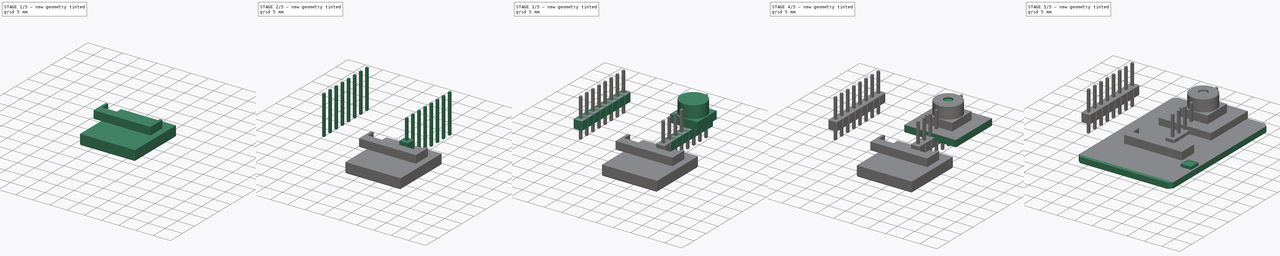
[diagram: build sequence overview — one tinted view per stage of 5, left to right]
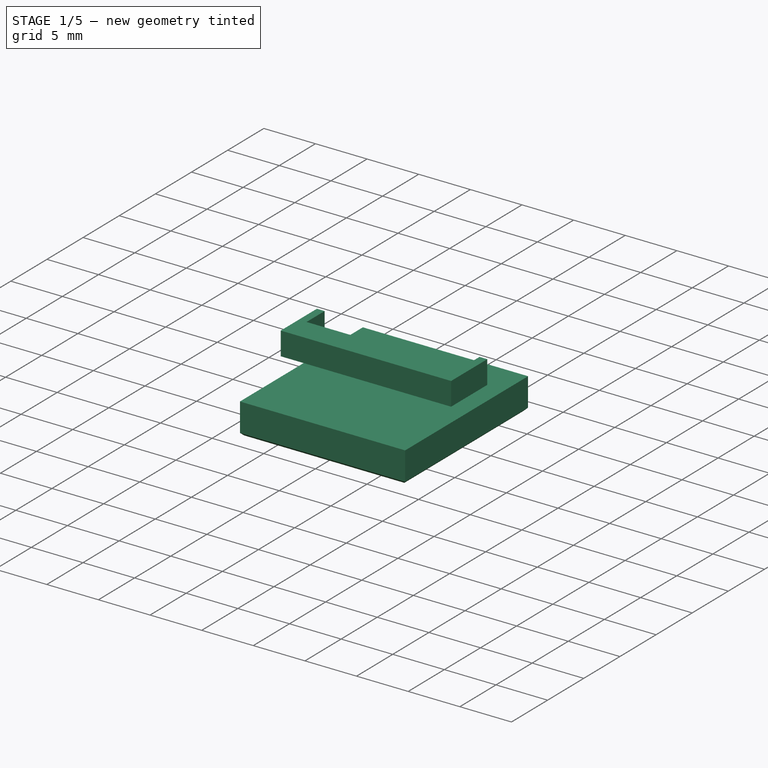
[diagram: stage 1 of 5 — iso view after this stage's code; geometry added in this stage tinted green]
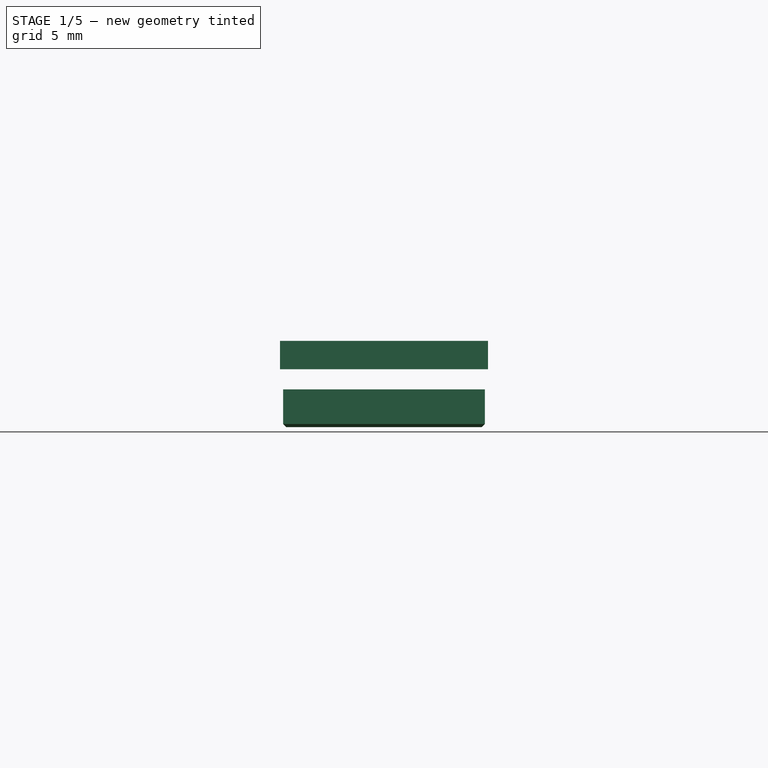
[diagram: stage 1 of 5 — front view after this stage's code; geometry added in this stage tinted green]
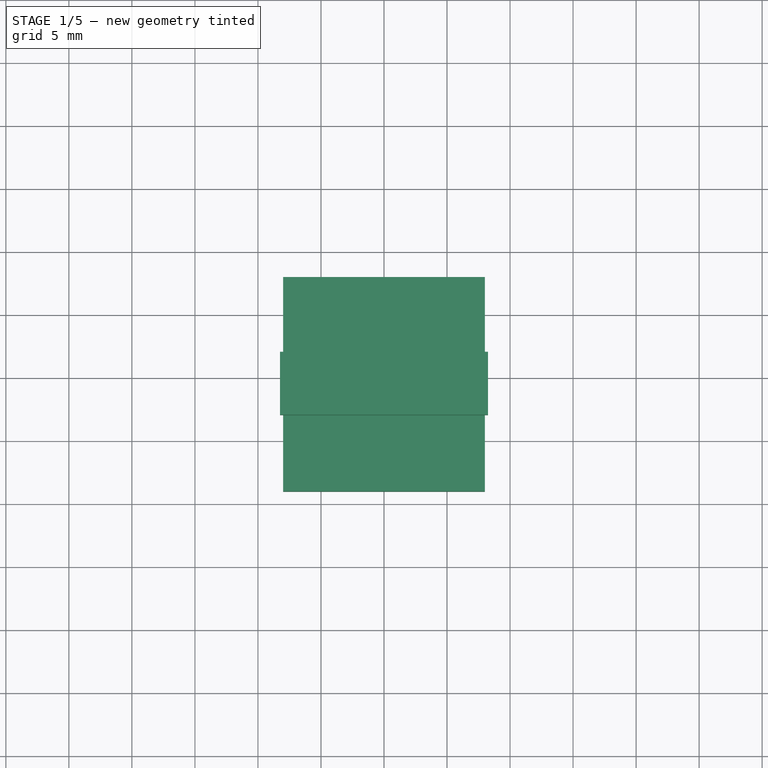
[diagram: stage 1 of 5 — top view after this stage's code; geometry added in this stage tinted green]
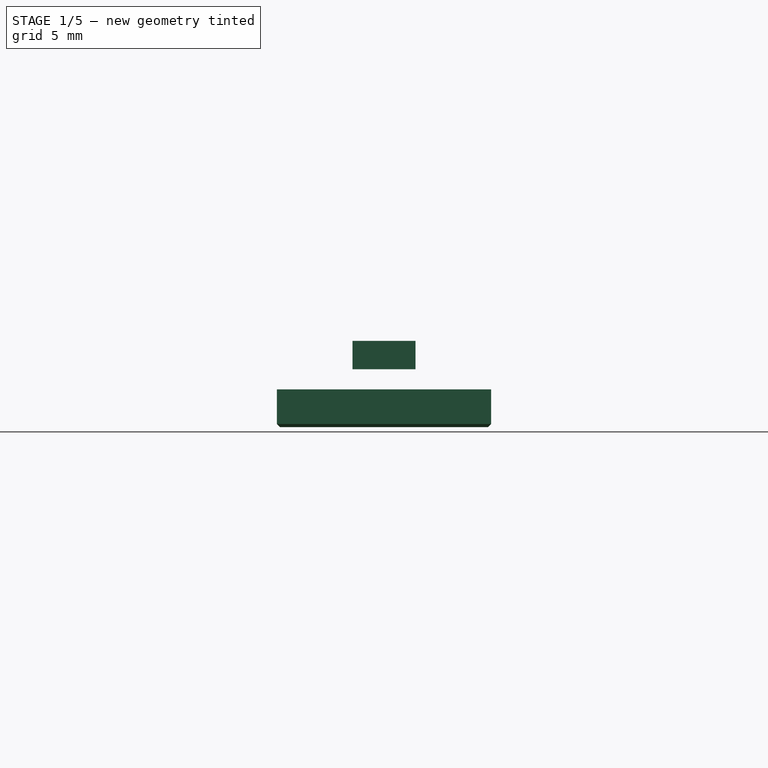
[diagram: stage 1 of 5 — right view after this stage's code; geometry added in this stage tinted green]
FCSTD DOCUMENT  (FreeCAD 0.18R4 (GitTag))
Label: ESP32-CAM
License: CreativeCommons Attribution-NonCommercial
LicenseURL: http://creativecommons.org/licenses/by-nc/4.0/
objects: Sketcher::SketchObject×12, PartDesign::Pad×9, PartDesign::Body×8, PartDesign::Chamfer×6, PartDesign::ShapeBinder×5, PartDesign::Pocket×3, Part::FeaturePython×2, App::Part×2, PartDesign::Thickness×1
note: 58 computed .brp shape members not serialized (recipe doc carries the construction recipe); baked Part::Feature solids carry a one-line shape summary decoded from their .brp

FEATURE [App::Part] Part010  label="Pin Header001"
  Group = -> [Body035,Body034,Array,Array001]
  Origin = -> Origin051
  Placement = pos=(12,15,0) rot=(1,0,0;3.14159rad)
FEATURE [PartDesign::ShapeBinder] CopyChamfer003
  Placement = pos=(0,0,1.6) rot=(0,0,1;0rad)
  TraceSupport = false
FEATURE [Sketcher::SketchObject] Sketch209
  MapMode = 5
  Placement = pos=(0,0,1.6) rot=(0,0,1;0rad)
  Support = -> [CopyChamfer003]
  sketch-geometry (4):
    g0: LineSegment StartX=-8.25 StartY=-3 StartZ=0 EndX=8.25 EndY=-3 EndZ=0
    g1: LineSegment StartX=8.25 StartY=-3 StartZ=0 EndX=8.25 EndY=-8 EndZ=0
    g2: LineSegment StartX=8.25 StartY=-8 StartZ=0 EndX=-8.25 EndY=-8 EndZ=0
    g3: LineSegment StartX=-8.25 StartY=-8 StartZ=0 EndX=-8.25 EndY=-3 EndZ=0
  constraints (11):
    c: Coincident(g0,g1)
    c: Coincident(g1,g2)
    c: Coincident(g2,g3)
    c: Coincident(g3,g0)
    c: Horizontal(g2)
    c: Vertical(g1)
    c: Vertical(g3)
    c: Symmetric(g0,g0,g-2)
    c: DistanceX(g0,g0) = 16.5
    c: DistanceY(g1,g1) = 5
    c: DistanceY(g1,g-1) = 8
FEATURE [PartDesign::Pad] Pad064
  Length = 2.25
  Length2 = 100
  Placement = pos=(0,0,1.6) rot=(0,0,1;0rad)
  Profile = -> Sketch209
  Type = 0
FEATURE [Sketcher::SketchObject] Sketch210
  MapMode = 5
  Placement = pos=(0,0,3.85) rot=(0,0,1;0rad)
  Support = -> [Pad064]
  sketch-geometry (4):
    g0: LineSegment StartX=-7.5 StartY=-3 StartZ=0 EndX=7.5 EndY=-3 EndZ=0
    g1: LineSegment StartX=7.5 StartY=-3 StartZ=0 EndX=7.5 EndY=-5.5 EndZ=0
    g2: LineSegment StartX=7.5 StartY=-5.5 StartZ=0 EndX=-7.5 EndY=-5.5 EndZ=0
    g3: LineSegment StartX=-7.5 StartY=-5.5 StartZ=0 EndX=-7.5 EndY=-3 EndZ=0
  constraints (11):
    c: Coincident(g0,g1)
    c: Coincident(g1,g2)
    c: Coincident(g2,g3)
    c: Coincident(g3,g0)
    c: Horizontal(g2)
    c: Vertical(g1)
    c: Vertical(g3)
    c: Symmetric(g0,g0,g-2)
    c: DistanceY(g0,g-1) = 3
    c: DistanceY(g1,g1) = 2.5
    c: DistanceX(g0,g0) = 15
FEATURE [PartDesign::Pocket] Pocket002
  BaseFeature = -> Pad064
  Length = 5
  Length2 = 100
  Placement = pos=(0,0,1.6) rot=(0,0,1;0rad)
  Profile = -> Sketch210
  Type = 0
FEATURE [PartDesign::Body] Body036  label="ESP32-CAM Cableconnector"
  Group = -> [CopyChamfer003,Sketch209,Pad064,Sketch210,Pocket002]
  Origin = -> Origin053
  Tip = -> Pocket002
FEATURE [PartDesign::ShapeBinder] CopyChamfer004
  TraceSupport = false
FEATURE [Sketcher::SketchObject] Sketch211
  MapMode = 5
  Placement = pos=(0,0,0) rot=(1,0,0;3.14159rad)
  Support = -> [CopyChamfer004]
  sketch-geometry (4):
    g0: LineSegment StartX=-8 StartY=14 StartZ=0 EndX=8 EndY=14 EndZ=0
    g1: LineSegment StartX=8 StartY=14 StartZ=0 EndX=8 EndY=-3 EndZ=0
    g2: LineSegment StartX=8 StartY=-3 StartZ=0 EndX=-8 EndY=-3 EndZ=0
    g3: LineSegment StartX=-8 StartY=-3 StartZ=0 EndX=-8 EndY=14 EndZ=0
  constraints (11):
    c: Coincident(g0,g1)
    c: Coincident(g1,g2)
    c: Coincident(g2,g3)
    c: Coincident(g3,g0)
    c: Horizontal(g2)
    c: Vertical(g1)
    c: Vertical(g3)
    c: Symmetric(g0,g0,g-2)
    c: DistanceX(g0,g0) = 16
    c: DistanceY(g3,g3) = 17
    c: DistanceY(g1,g-1) = 3
FEATURE [PartDesign::Pad] Pad065
  Length = 3
  Length2 = 100
  Profile = -> Sketch211
  Type = 0
FEATURE [PartDesign::Chamfer] Chamfer015
  Base = -> Pad065 [Face6]
  BaseFeature = -> Pad065
  Size = 0.25
FEATURE [PartDesign::Body] Body037  label="ESP32-CAM ESP-Chip"
  Group = -> [CopyChamfer004,Sketch211,Pad065,Chamfer015]
  Origin = -> Origin054
  Tip = -> Chamfer015
FEATURE [App::Part] Part  label="ESP32-CAM"
  Group = -> [Body,Body001,Body002,Body003,Part010,Body036,Body037]
  Origin = -> Origin
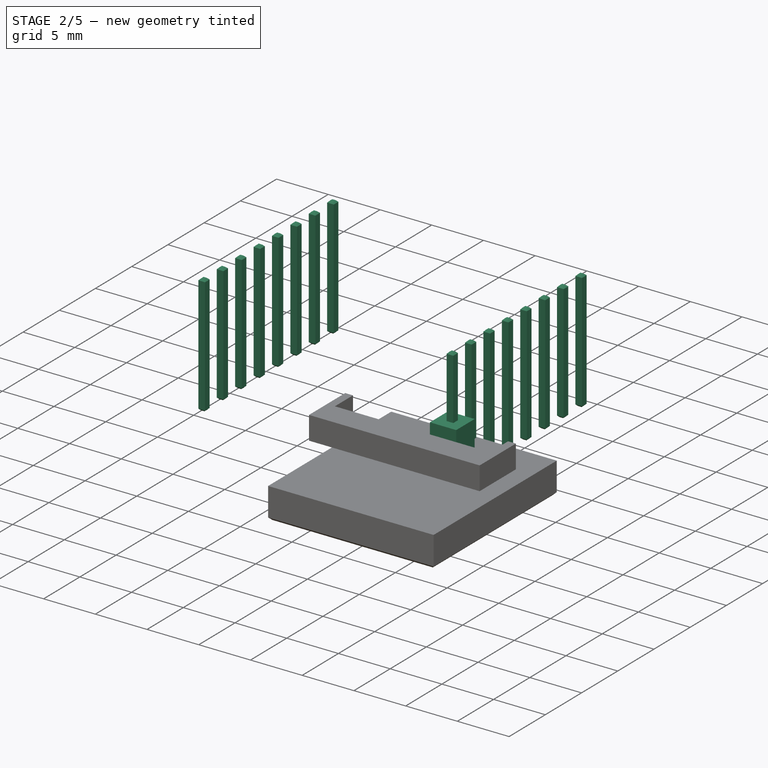
[diagram: stage 2 of 5 — iso view after this stage's code; geometry added in this stage tinted green]
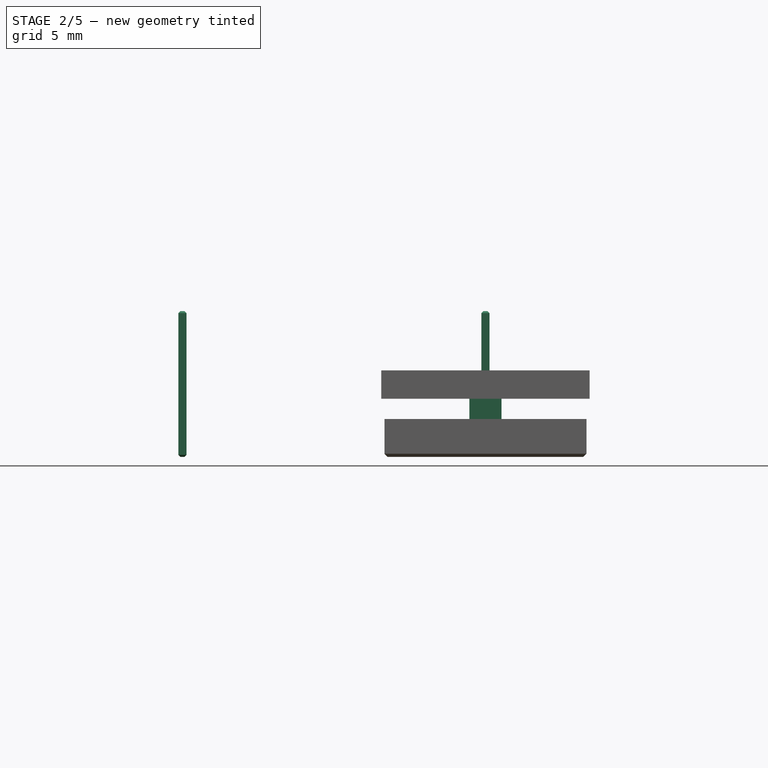
[diagram: stage 2 of 5 — front view after this stage's code; geometry added in this stage tinted green]
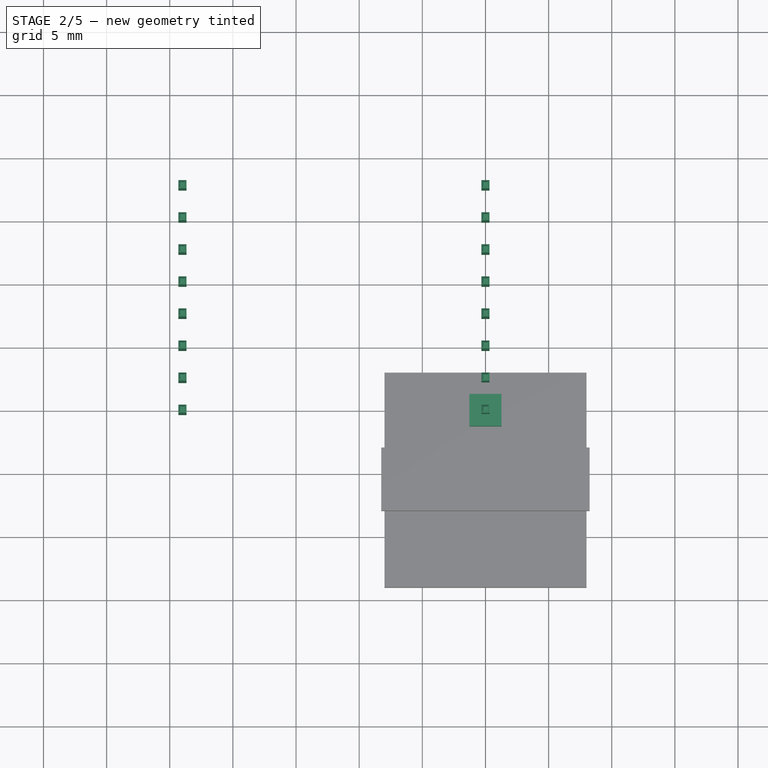
[diagram: stage 2 of 5 — top view after this stage's code; geometry added in this stage tinted green]
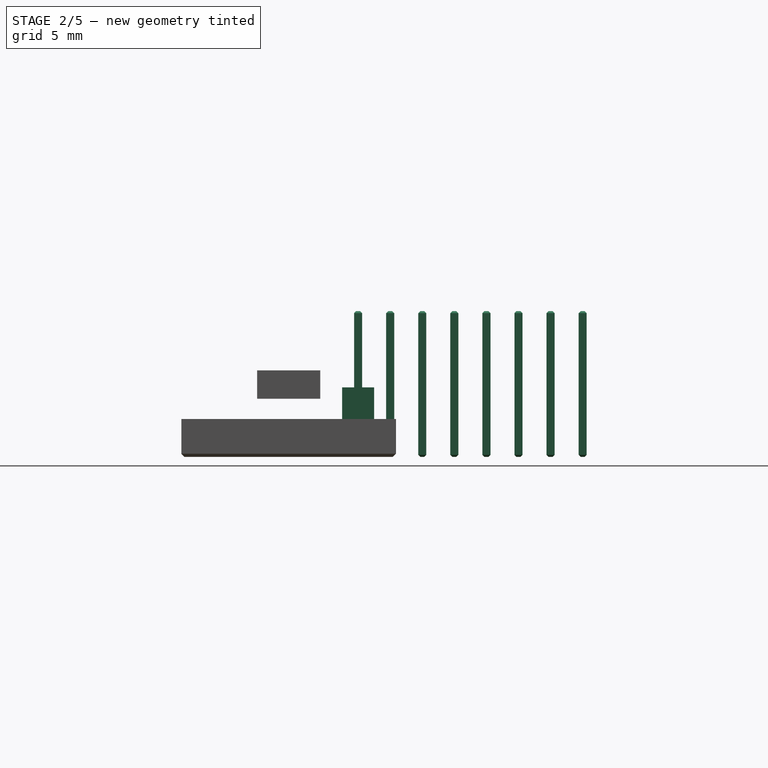
[diagram: stage 2 of 5 — right view after this stage's code; geometry added in this stage tinted green]
FEATURE [PartDesign::Body] Body002  label="ESP32-CAM Camera"
  Group = -> [CopyThickness,Sketch005,Pad003,Sketch006,Pad004,Sketch007,Pocket001,Chamfer001]
  Origin = -> Origin003
  Tip = -> Chamfer001
FEATURE [Sketcher::SketchObject] Sketch207
  MapMode = 5
  Placement = pos=(0,0,0) rot=(1,0,0;1.5708rad)
  Support = -> [XZ_Plane050]
  sketch-geometry (4):
    g0: LineSegment StartX=-0.32 StartY=-3 StartZ=0 EndX=0.32 EndY=-3 EndZ=0
    g1: LineSegment StartX=0.32 StartY=-3 StartZ=0 EndX=0.32 EndY=8.54 EndZ=0
    g2: LineSegment StartX=0.32 StartY=8.54 StartZ=0 EndX=-0.32 EndY=8.54 EndZ=0
    g3: LineSegment StartX=-0.32 StartY=8.54 StartZ=0 EndX=-0.32 EndY=-3 EndZ=0
  constraints (11):
    c: Coincident(g0,g1)
    c: Coincident(g1,g2)
    c: Coincident(g2,g3)
    c: Coincident(g3,g0)
    c: Horizontal(g0)
    c: Vertical(g1)
    c: Vertical(g3)
    c: DistanceY(g-1,g1) = 8.54
    c: DistanceY(g0,g-1) = 3
    c: Symmetric(g2,g1,g-2)
    c: DistanceX(g2,g2) = 0.64
FEATURE [PartDesign::Pad] Pad062
  Length = 0.32
  Length2 = 0.32
  Placement = pos=(0,0,0) rot=(1,0,0;1.5708rad)
  Profile = -> Sketch207
  Type = 4
FEATURE [Sketcher::SketchObject] Sketch208
  MapMode = 5
  Support = -> [XY_Plane052]
  sketch-geometry (4):
    g0: LineSegment StartX=-1.27 StartY=-1.27 StartZ=0 EndX=1.27 EndY=-1.27 EndZ=0
    g1: LineSegment StartX=1.27 StartY=-1.27 StartZ=0 EndX=1.27 EndY=1.27 EndZ=0
    g2: LineSegment StartX=1.27 StartY=1.27 StartZ=0 EndX=-1.27 EndY=1.27 EndZ=0
    g3: LineSegment StartX=-1.27 StartY=1.27 StartZ=0 EndX=-1.27 EndY=-1.27 EndZ=0
  constraints (10):
    c: Coincident(g0,g1)
    c: Coincident(g1,g2)
    c: Coincident(g2,g3)
    c: Coincident(g3,g0)
    c: Horizontal(g0)
    c: Vertical(g3)
    c: Symmetric(g1,g2,g-2)
    c: Symmetric(g0,g1,g-1)
    c: Equal(g3,g2)
    c: DistanceX(g2,g2) = 2.54
FEATURE [PartDesign::Pad] Pad063
  Length = 2.5
  Length2 = 100
  Profile = -> Sketch208
  Type = 0
FEATURE [PartDesign::Body] Body035  label="Pin Header Block001"
  Group = -> [Sketch208,Pad063,Chamfer014,Chamfer013]
  Origin = -> Origin052
  Tip = -> Chamfer013
FEATURE [PartDesign::Chamfer] Chamfer012
  Base = -> Pad062 [Face3,Face1]
  BaseFeature = -> Pad062
  Placement = pos=(0,0,0) rot=(1,0,0;1.5708rad)
  Size = 0.16
FEATURE [Part::FeaturePython] Array001  # Draft array (typed FeaturePython)
  Angle = 360
  ArrayType = 0
  Axis = (0,0,1)
  Base = -> Body034
  Center = (0,0,0)
  Fuse = false
  IntervalAxis = (0,0,0)
  IntervalX = (-24,0,0)
  IntervalY = (0,2.54,0)
  IntervalZ = (0,0,1)
  NumberPolar = 1
  NumberX = 2
  NumberY = 8
  NumberZ = 1
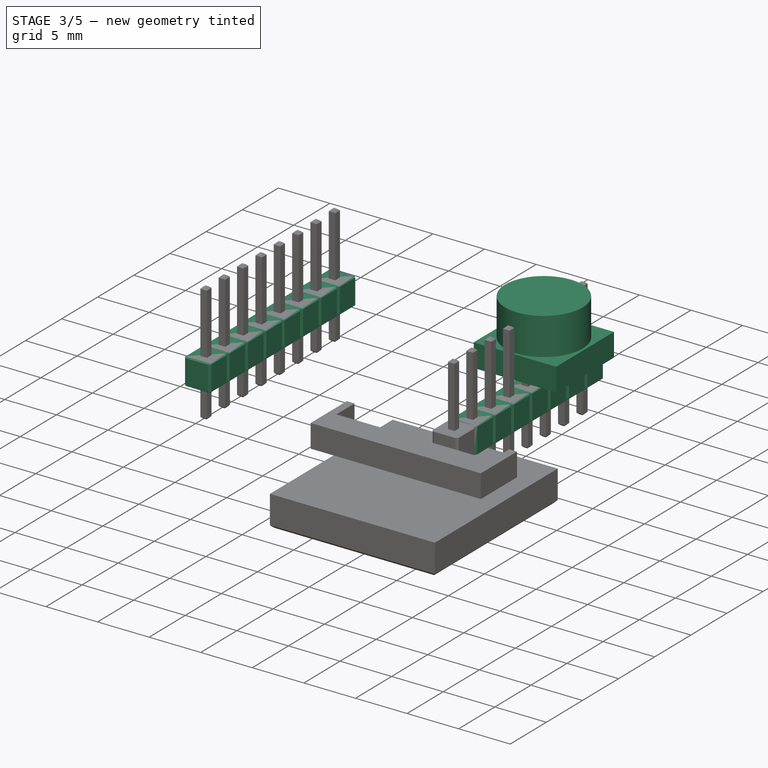
[diagram: stage 3 of 5 — iso view after this stage's code; geometry added in this stage tinted green]
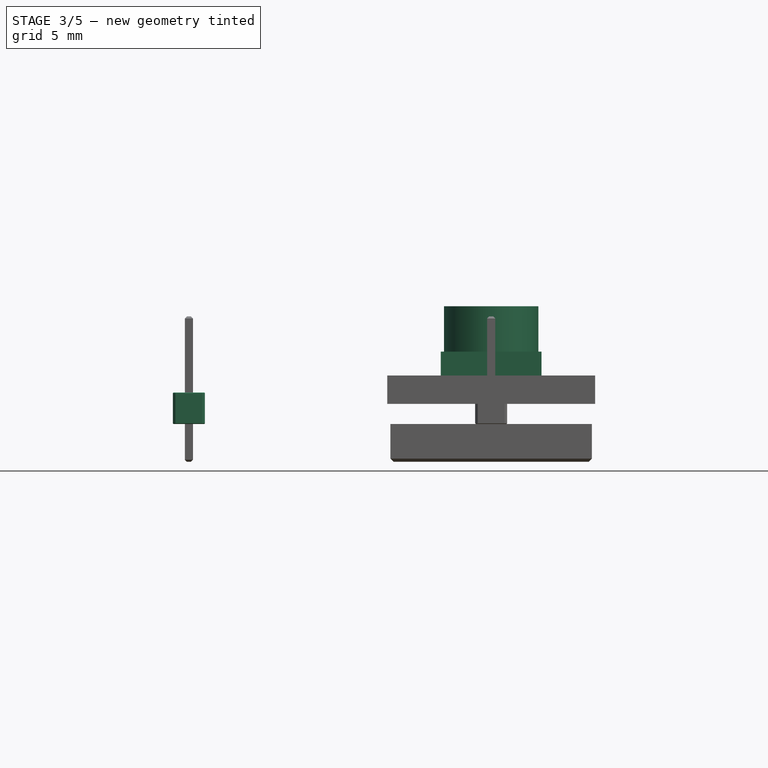
[diagram: stage 3 of 5 — front view after this stage's code; geometry added in this stage tinted green]
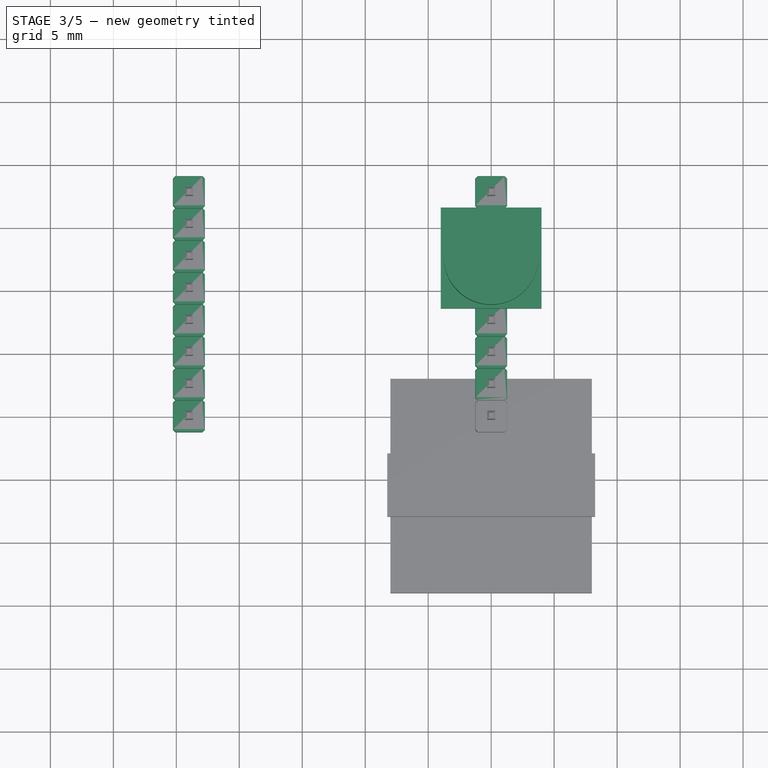
[diagram: stage 3 of 5 — top view after this stage's code; geometry added in this stage tinted green]
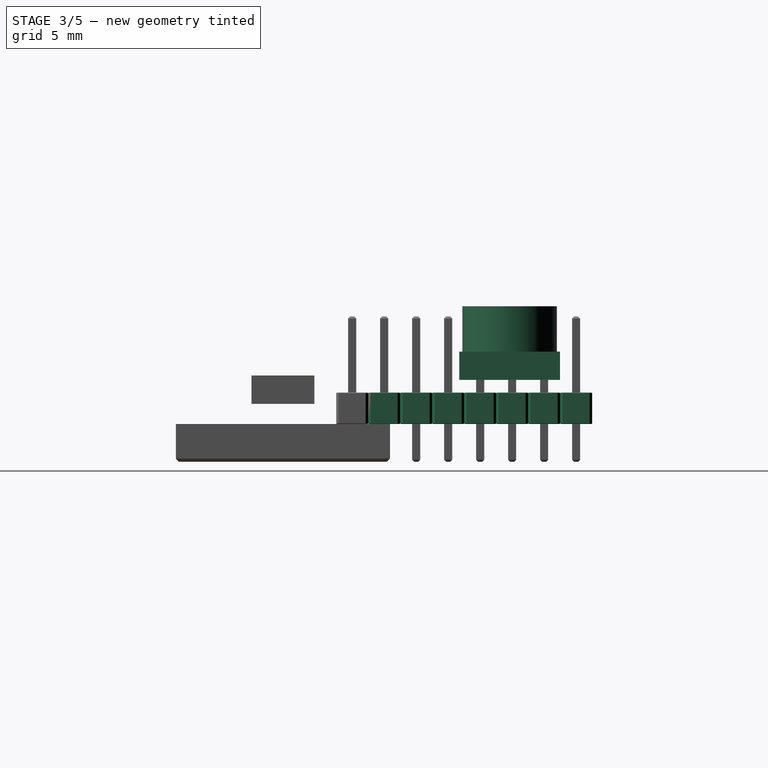
[diagram: stage 3 of 5 — right view after this stage's code; geometry added in this stage tinted green]
FEATURE [PartDesign::Body] Body003  label="ESP32-CAM Metalplates"
  Group = -> [CopyChamfer002,Sketch004,Pad002,Thickness]
  Origin = -> Origin004
  Tip = -> Thickness
FEATURE [PartDesign::ShapeBinder] CopyThickness
  Placement = pos=(0,0,1.9) rot=(0,0,1;0rad)
  TraceSupport = false
FEATURE [Sketcher::SketchObject] Sketch005
  MapMode = 5
  Placement = pos=(0,0,3.5) rot=(0,0,1;0rad)
  Support = -> [CopyThickness]
  sketch-geometry (4):
    g0: LineSegment StartX=-4 StartY=16.5 StartZ=0 EndX=4 EndY=16.5 EndZ=0
    g1: LineSegment StartX=4 StartY=16.5 StartZ=0 EndX=4 EndY=8.5 EndZ=0
    g2: LineSegment StartX=4 StartY=8.5 StartZ=0 EndX=-4 EndY=8.5 EndZ=0
    g3: LineSegment StartX=-4 StartY=8.5 StartZ=0 EndX=-4 EndY=16.5 EndZ=0
  constraints (11):
    c: Coincident(g0,g1)
    c: Coincident(g1,g2)
    c: Coincident(g2,g3)
    c: Coincident(g3,g0)
    c: Horizontal(g2)
    c: Vertical(g1)
    c: Vertical(g3)
    c: Equal(g1,g0)
    c: Symmetric(g0,g0,g-2)
    c: DistanceX(g0,g0) = 8
    c: DistanceY(g-1,g1) = 8.5
FEATURE [PartDesign::Pad] Pad003
  Length = 2.25
  Length2 = 100
  Placement = pos=(0,0,1.9) rot=(0,0,1;0rad)
  Profile = -> Sketch005
  Type = 0
FEATURE [Sketcher::SketchObject] Sketch006
  ExternalGeometry = -> [Pad003]
  MapMode = 5
  Placement = pos=(0,0,5.75) rot=(0,0,1;0rad)
  Support = -> [Pad003]
  sketch-geometry (4):
    g0: Circle CenterX=-2.53e-14 CenterY=12.5 CenterZ=0 NormalX=0 NormalY=0 NormalZ=1 AngleXU=0 Radius=3.75
    g1: LineSegment [constr] StartX=-4 StartY=8.5 StartZ=0 EndX=-2.53e-14 EndY=12.5 EndZ=0
    g2: LineSegment [constr] StartX=-4 StartY=16.5 StartZ=0 EndX=-2.53e-14 EndY=12.5 EndZ=0
    g3: LineSegment [constr] StartX=-2.53e-14 StartY=12.5 StartZ=0 EndX=4 EndY=16.5 EndZ=0
  constraints (9):
    c: Coincident(g1,g-4)
    c: Coincident(g1,g0)
    c: Coincident(g2,g-4)
    c: Coincident(g2,g0)
    c: Coincident(g3,g0)
    c: Coincident(g3,g-3)
    c: Equal(g3,g2)
    c: Equal(g2,g1)
    c: Radius(g0) = 3.75
FEATURE [PartDesign::Pad] Pad004
  BaseFeature = -> Pad003
  Length = 3.6
  Length2 = 100
  Placement = pos=(0,0,1.9) rot=(0,0,1;0rad)
  Profile = -> Sketch006
  Type = 0
FEATURE [PartDesign::Chamfer] Chamfer014
  Base = -> Pad063 [Edge2,Edge1,Edge5,Edge8]
  BaseFeature = -> Pad063
  Size = 0.2
FEATURE [PartDesign::Chamfer] Chamfer013
  Base = -> Chamfer014 [Face5,Face2]
  BaseFeature = -> Chamfer014
  Size = 0.05
FEATURE [PartDesign::Body] Body034  label="Pin Header Pin001"
  Group = -> [Sketch207,Pad062,Chamfer012]
  Origin = -> Origin050
  Tip = -> Chamfer012
FEATURE [Part::FeaturePython] Array  # Draft array (typed FeaturePython)
  Angle = 360
  ArrayType = 0
  Axis = (0,0,1)
  Base = -> Body035
  Center = (0,0,0)
  Fuse = false
  IntervalAxis = (0,0,0)
  IntervalX = (-24,0,0)
  IntervalY = (0,2.54,0)
  IntervalZ = (0,0,1)
  NumberPolar = 1
  NumberX = 2
  NumberY = 8
  NumberZ = 1
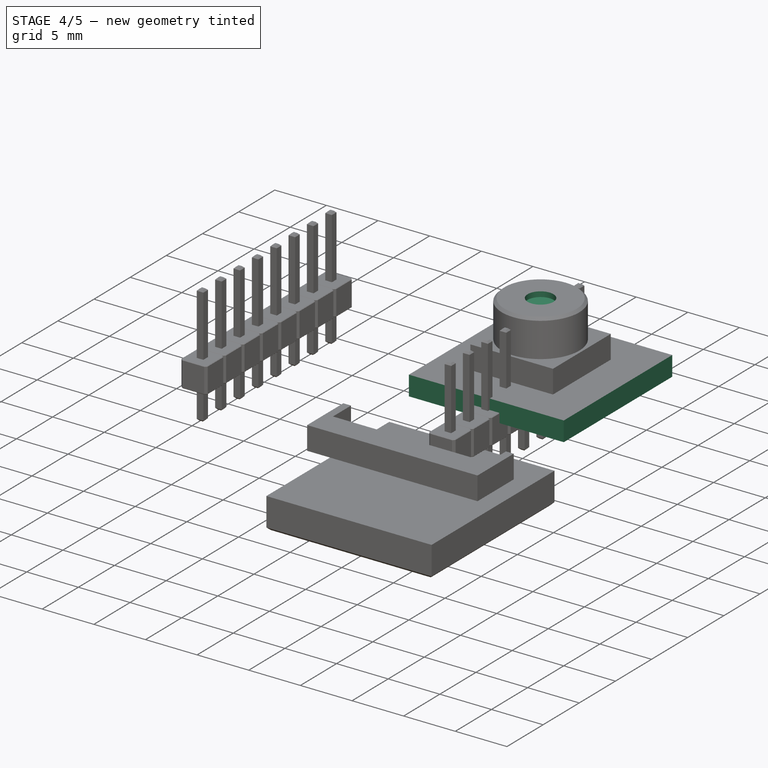
[diagram: stage 4 of 5 — iso view after this stage's code; geometry added in this stage tinted green]
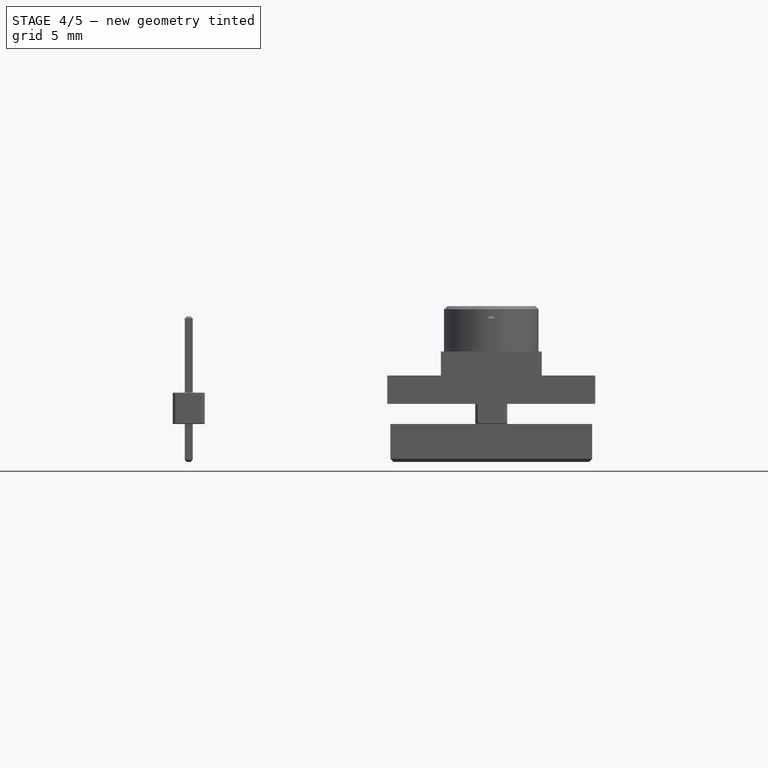
[diagram: stage 4 of 5 — front view after this stage's code; geometry added in this stage tinted green]
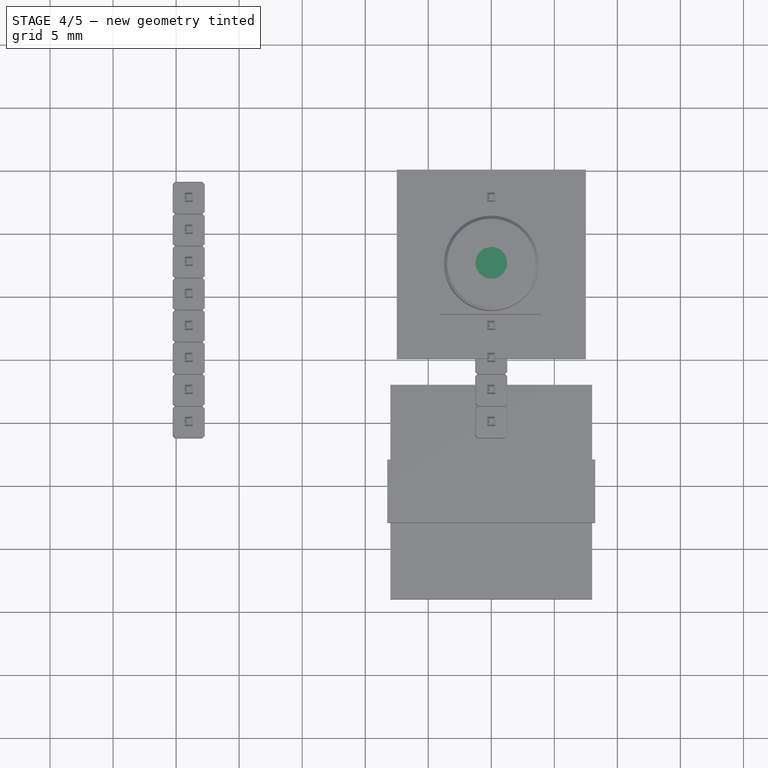
[diagram: stage 4 of 5 — top view after this stage's code; geometry added in this stage tinted green]
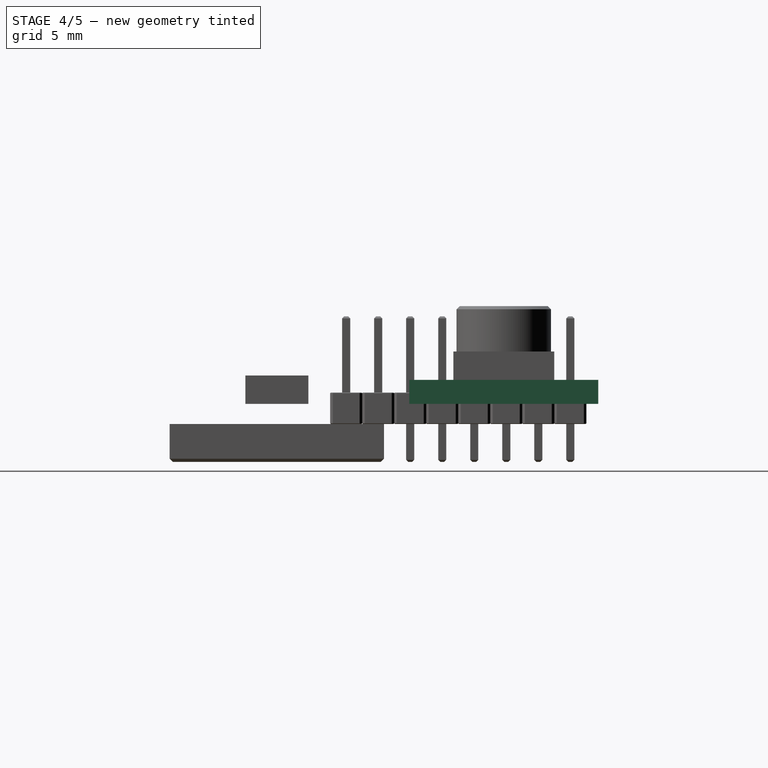
[diagram: stage 4 of 5 — right view after this stage's code; geometry added in this stage tinted green]
FEATURE [PartDesign::Body] Body001  label="ESP32-CAM Flashlight"
  Group = -> [CopyChamfer,Sketch001,Pad001,Sketch002,Pocket]
  Origin = -> Origin002
  Tip = -> Pocket
FEATURE [PartDesign::ShapeBinder] CopyChamfer002
  Placement = pos=(0,0,1.6) rot=(0,0,1;0rad)
  TraceSupport = false
FEATURE [Sketcher::SketchObject] Sketch004
  MapMode = 5
  Placement = pos=(0,0,1.6) rot=(0,0,1;0rad)
  Support = -> [CopyChamfer002]
  sketch-geometry (4):
    g0: LineSegment StartX=-7.5 StartY=20 StartZ=0 EndX=7.5 EndY=20 EndZ=0
    g1: LineSegment StartX=7.5 StartY=20 StartZ=0 EndX=7.5 EndY=5 EndZ=0
    g2: LineSegment StartX=7.5 StartY=5 StartZ=0 EndX=-7.5 EndY=5 EndZ=0
    g3: LineSegment StartX=-7.5 StartY=5 StartZ=0 EndX=-7.5 EndY=20 EndZ=0
  constraints (11):
    c: Coincident(g0,g1)
    c: Coincident(g1,g2)
    c: Coincident(g2,g3)
    c: Coincident(g3,g0)
    c: Horizontal(g2)
    c: Vertical(g1)
    c: Vertical(g3)
    c: Symmetric(g0,g0,g-2)
    c: DistanceX(g0,g0) = 15
    c: Equal(g1,g0)
    c: DistanceY(g-1,g0) = 20
FEATURE [PartDesign::Pad] Pad002
  Length = 1.9
  Length2 = 100
  Placement = pos=(0,0,1.6) rot=(0,0,1;0rad)
  Profile = -> Sketch004
  Type = 0
FEATURE [PartDesign::Thickness] Thickness
  Base = -> Pad002 [Face1]
  BaseFeature = -> Pad002
  Join = 0
  Mode = 0
  Reversed = true
  Value = 0.3
FEATURE [Sketcher::SketchObject] Sketch007
  ExternalGeometry = -> [Pad004]
  MapMode = 5
  Placement = pos=(0,0,9.35) rot=(0,0,1;0rad)
  Support = -> [Pad004]
  sketch-geometry (1):
    g0: Circle CenterX=0 CenterY=12.5 CenterZ=0 NormalX=0 NormalY=0 NormalZ=1 AngleXU=0 Radius=1.25
  constraints (2):
    c: Coincident(g0,g-3)
    c: Radius(g0) = 1.25
FEATURE [PartDesign::Pocket] Pocket001
  BaseFeature = -> Pad004
  Length = 0.5
  Length2 = 100
  Placement = pos=(0,0,1.9) rot=(0,0,1;0rad)
  Profile = -> Sketch007
  Type = 0
FEATURE [PartDesign::Chamfer] Chamfer001
  Base = -> Pocket001 [Edge15]
  BaseFeature = -> Pocket001
  Placement = pos=(0,0,1.9) rot=(0,0,1;0rad)
  Size = 0.25
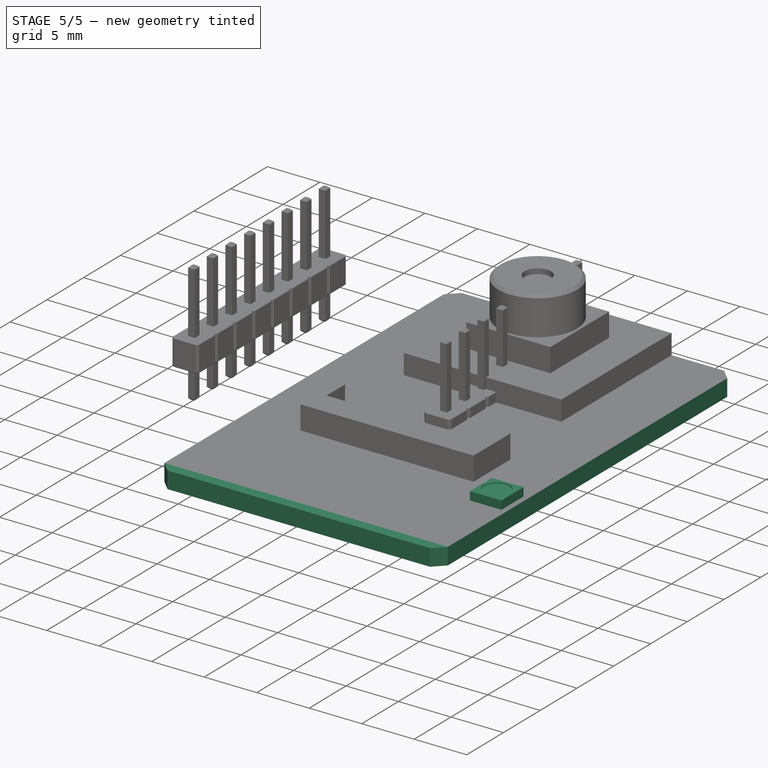
[diagram: stage 5 of 5 — iso view after this stage's code; geometry added in this stage tinted green]
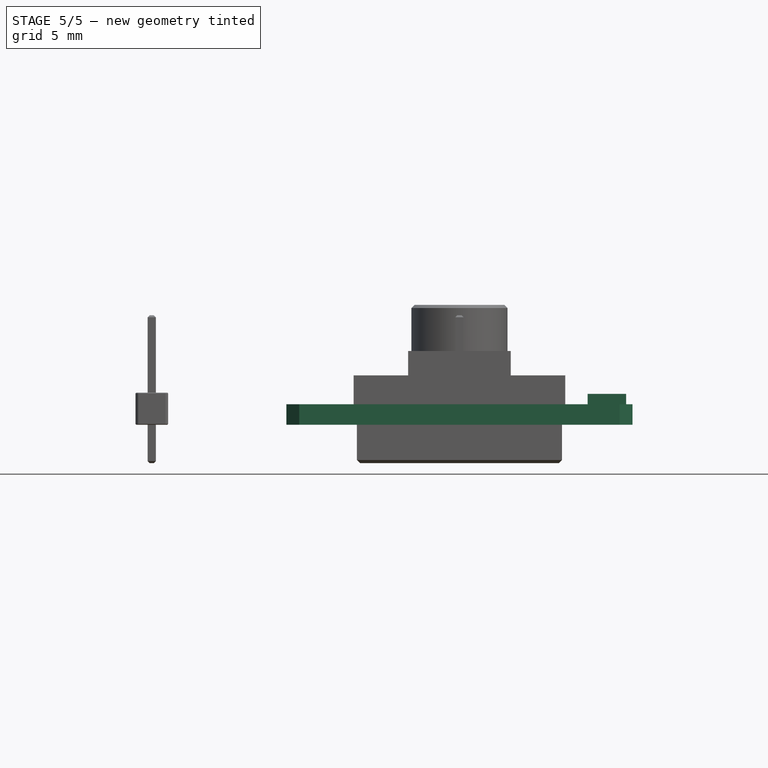
[diagram: stage 5 of 5 — front view after this stage's code; geometry added in this stage tinted green]
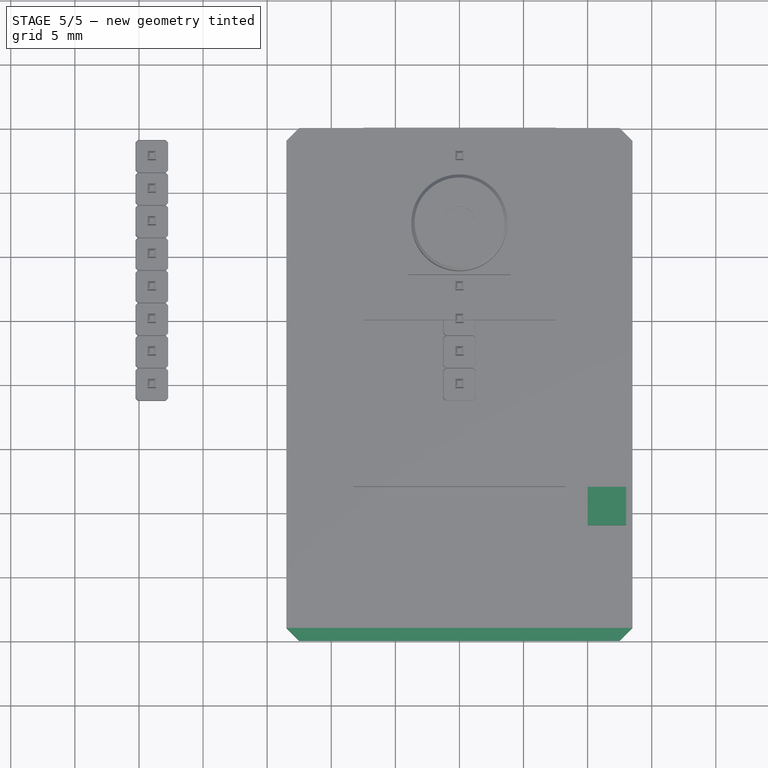
[diagram: stage 5 of 5 — top view after this stage's code; geometry added in this stage tinted green]
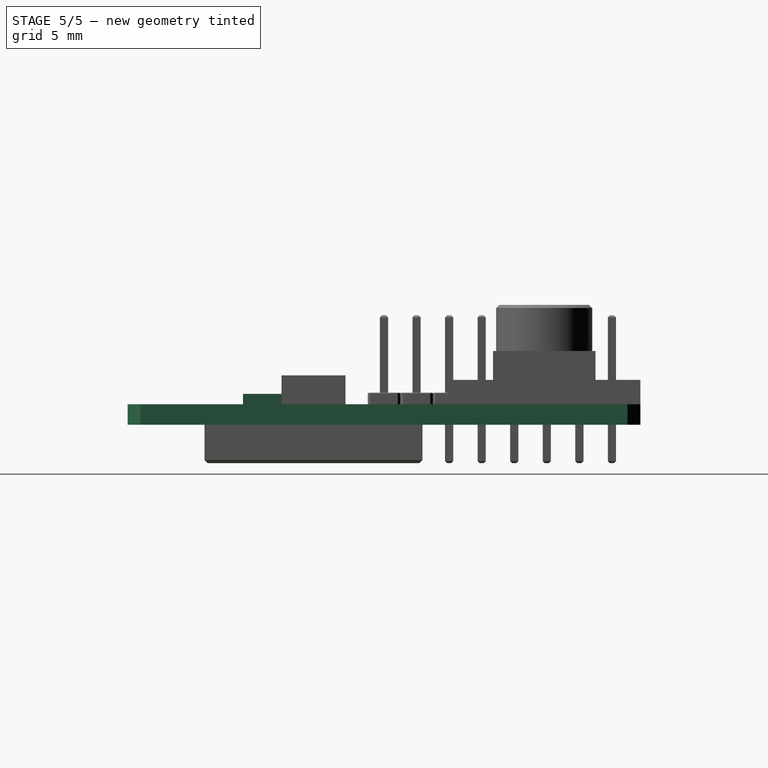
[diagram: stage 5 of 5 — right view after this stage's code; geometry added in this stage tinted green]
FEATURE [Sketcher::SketchObject] Sketch
  MapMode = 5
  Support = -> [XY_Plane001]
  sketch-geometry (4):
    g0: LineSegment StartX=-13.5 StartY=20 StartZ=0 EndX=13.5 EndY=20 EndZ=0
    g1: LineSegment StartX=13.5 StartY=20 StartZ=0 EndX=13.5 EndY=-20 EndZ=0
    g2: LineSegment StartX=13.5 StartY=-20 StartZ=0 EndX=-13.5 EndY=-20 EndZ=0
    g3: LineSegment StartX=-13.5 StartY=-20 StartZ=0 EndX=-13.5 EndY=20 EndZ=0
  constraints (10):
    c: Coincident(g0,g1)
    c: Coincident(g1,g2)
    c: Coincident(g2,g3)
    c: Coincident(g3,g0)
    c: Horizontal(g2)
    c: Vertical(g3)
    c: Symmetric(g0,g0,g-2)
    c: Symmetric(g0,g1,g-1)
    c: DistanceX(g0,g0) = 27
    c: DistanceY(g1,g1) = 40
FEATURE [PartDesign::Pad] Pad  label="PCB Baseplate"
  Length = 1.6
  Length2 = 100
  Profile = -> Sketch
  Type = 0
FEATURE [PartDesign::Chamfer] Chamfer
  Base = -> Pad [Edge8,Edge5,Edge2,Edge1]
  BaseFeature = -> Pad
  Size = 1
FEATURE [PartDesign::Body] Body  label="ESP32-CAM PCB"
  Group = -> [Sketch,Pad,Chamfer]
  Origin = -> Origin001
  Tip = -> Chamfer
FEATURE [PartDesign::ShapeBinder] CopyChamfer
  Placement = pos=(0,0,1.6) rot=(0,0,1;0rad)
  TraceSupport = false
FEATURE [Sketcher::SketchObject] Sketch001
  MapMode = 5
  Placement = pos=(0,0,1.6) rot=(0,0,1;0rad)
  Support = -> [CopyChamfer]
  sketch-geometry (4):
    g0: LineSegment StartX=10 StartY=-11 StartZ=0 EndX=13 EndY=-11 EndZ=0
    g1: LineSegment StartX=13 StartY=-11 StartZ=0 EndX=13 EndY=-8 EndZ=0
    g2: LineSegment StartX=13 StartY=-8 StartZ=0 EndX=10 EndY=-8 EndZ=0
    g3: LineSegment StartX=10 StartY=-8 StartZ=0 EndX=10 EndY=-11 EndZ=0
  constraints (12):
    c: Coincident(g0,g1)
    c: Coincident(g1,g2)
    c: Coincident(g2,g3)
    c: Coincident(g3,g0)
    c: Horizontal(g0)
    c: Horizontal(g2)
    c: Vertical(g1)
    c: Vertical(g3)
    c: DistanceY(g0,g-1) = 11
    c: DistanceY(g3,g3) = 3
    c: Equal(g3,g2)
    c: DistanceX(g-1,g2) = 10
FEATURE [PartDesign::Pad] Pad001
  Length = 0.8
  Length2 = 100
  Placement = pos=(0,0,1.6) rot=(0,0,1;0rad)
  Profile = -> Sketch001
  Type = 0
FEATURE [Sketcher::SketchObject] Sketch002
  ExternalGeometry = -> [Pad001]
  MapMode = 5
  Placement = pos=(0,0,2.4) rot=(0,0,1;0rad)
  Support = -> [Pad001]
  sketch-geometry (4):
    g0: Circle CenterX=11.5 CenterY=-9.5 CenterZ=0 NormalX=0 NormalY=0 NormalZ=1 AngleXU=0 Radius=1.25
    g1: LineSegment [constr] StartX=10 StartY=-8 StartZ=0 EndX=11.5 EndY=-9.5 EndZ=0
    g2: LineSegment [constr] StartX=11.5 StartY=-9.5 StartZ=0 EndX=13 EndY=-8 EndZ=0
    g3: LineSegment [constr] StartX=11.5 StartY=-9.5 StartZ=0 EndX=10 EndY=-11 EndZ=0
  constraints (9):
    c: Coincident(g1,g-4)
    c: Coincident(g1,g0)
    c: Coincident(g2,g0)
    c: Coincident(g2,g-3)
    c: Coincident(g3,g0)
    c: Coincident(g3,g-4)
    c: Equal(g1,g2)
    c: Equal(g2,g3)
    c: Radius(g0) = 1.25
FEATURE [PartDesign::Pocket] Pocket
  BaseFeature = -> Pad001
  Length = 0.1
  Length2 = 100
  Placement = pos=(0,0,1.6) rot=(0,0,1;0rad)
  Profile = -> Sketch002
  Type = 0
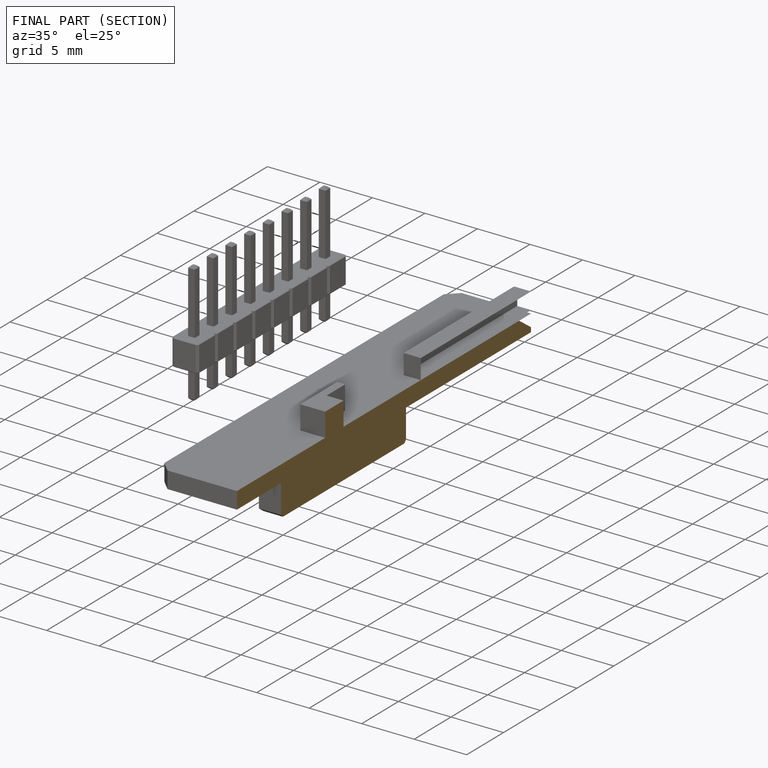
[diagram: finished part — half-section view (interior)]
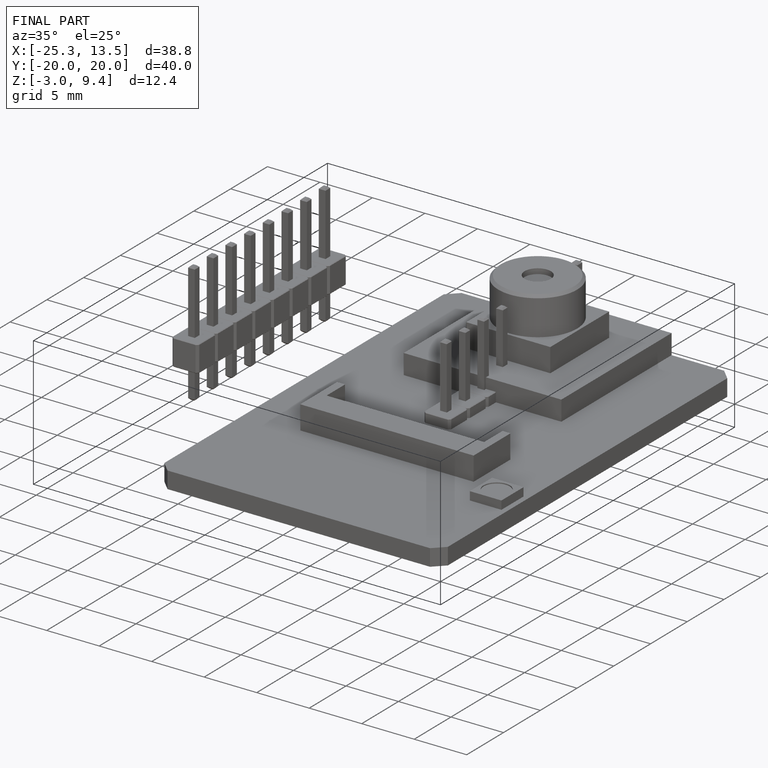
[diagram: finished part — iso view with bounding-box wireframe]
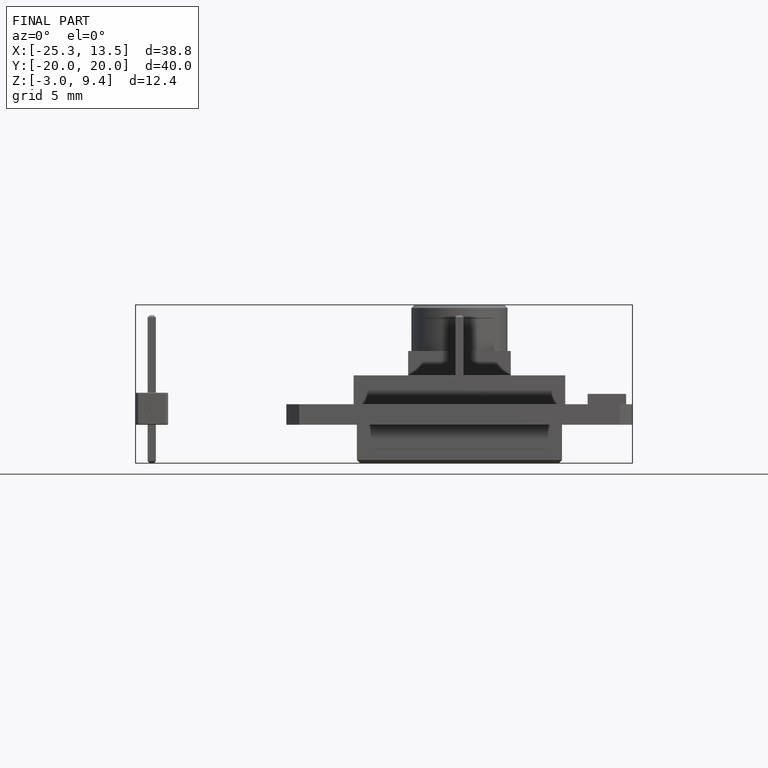
[diagram: finished part — front view with bounding-box wireframe]
